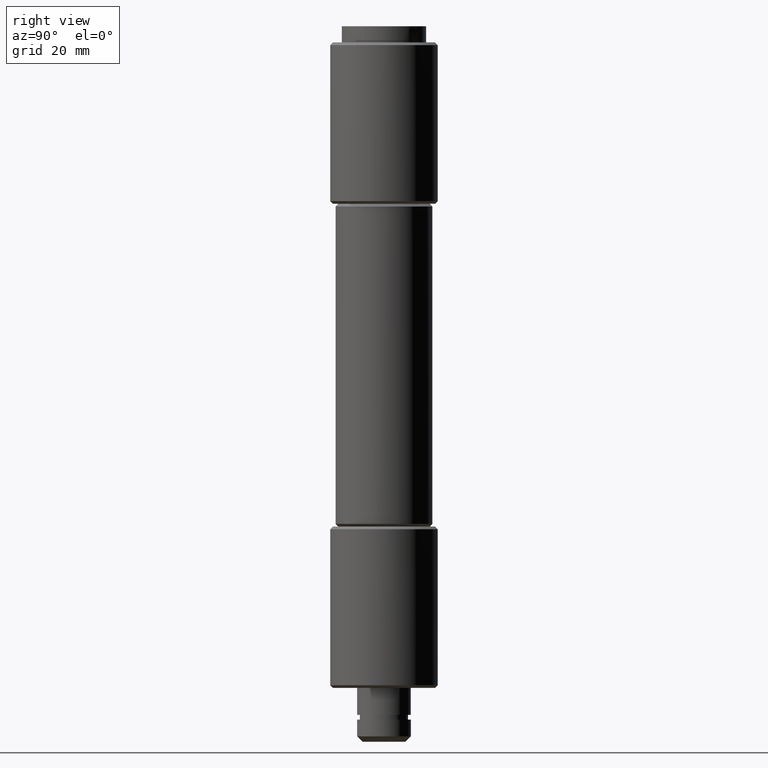
[diagram: clean part render]
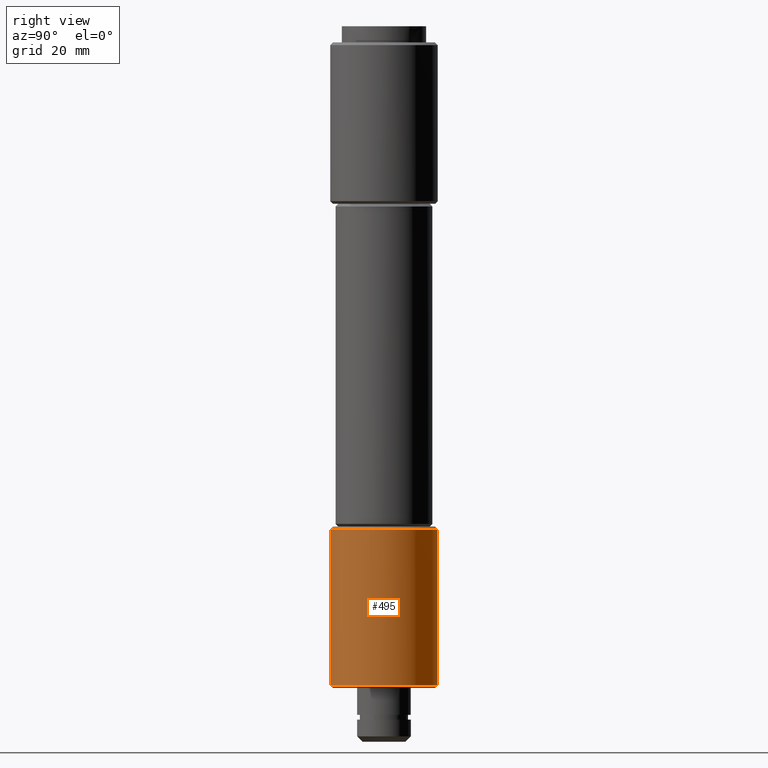
[diagram: same view with one face highlighted and labeled with its STEP entity id]
A machine part, right view. The second image highlights one B-rep face of the part: STEP entity #495.
In plain terms, the highlighted face is a freeform B-spline surface patch.
Its self-contained STEP definition (entity closure, byte-faithful):
#68=CARTESIAN_POINT('',(1.241280020905106,9.922662138242025,39.500000000000000));
#69=VERTEX_POINT('',#68);
#126=CARTESIAN_POINT('',(-0.087265355078694,-9.999619230640786,39.500000000000099));
#127=VERTEX_POINT('',#126);
#133=CARTESIAN_POINT('',(10.0,0.0,39.500000000000000));
#134=VERTEX_POINT('',#133);
#135=CARTESIAN_POINT('',(10.0,0.0,39.500000000000000));
#136=CARTESIAN_POINT('',(10.000000000000002,-10.000000000000002,39.500000000000000));
#137=CARTESIAN_POINT('',(0.0,-10.0,39.500000000000000));
#138=CARTESIAN_POINT('',(-0.043633508396916,-10.0,39.500000000000000));
#139=CARTESIAN_POINT('',(-0.087265355078694,-9.999619230640786,39.500000000000099));
#147=(BOUNDED_CURVE()B_SPLINE_CURVE(2,(#135,#136,#137,#138,#139),.UNSPECIFIED.,.F.,.U.)B_SPLINE_CURVE_WITH_KNOTS((3,2,3),(0.500000000000000,0.750000000000000,0.751539894341677),.UNSPECIFIED.)CURVE()GEOMETRIC_REPRESENTATION_ITEM()RATIONAL_B_SPLINE_CURVE((1.0,0.707106781186548,1.0,0.998195901558535,0.996414028084924))REPRESENTATION_ITEM(''));
#148=EDGE_CURVE('',#134,#127,#147,.T.);
#150=CARTESIAN_POINT('',(1.241280020905105,9.922662138242025,39.500000000000007));
#151=CARTESIAN_POINT('',(10.0,8.826986001310770,39.500000000000000));
#152=CARTESIAN_POINT('',(10.0,0.0,39.500000000000000));
#160=(BOUNDED_CURVE()B_SPLINE_CURVE(2,(#150,#151,#152),.UNSPECIFIED.,.F.,.U.)B_SPLINE_CURVE_WITH_KNOTS((3,3),(0.271473928974332,0.500000000000000),.UNSPECIFIED.)CURVE()GEOMETRIC_REPRESENTATION_ITEM()RATIONAL_B_SPLINE_CURVE((0.954005430267673,0.732265053898002,1.0))REPRESENTATION_ITEM(''));
#161=EDGE_CURVE('',#69,#134,#160,.T.);
#351=CARTESIAN_POINT('',(1.241280020950387,9.922662138236358,10.500000000000000));
#352=VERTEX_POINT('',#351);
#368=CARTESIAN_POINT('',(10.0,0.0,10.500000000000000));
#369=VERTEX_POINT('',#368);
#370=CARTESIAN_POINT('',(10.0,0.0,10.500000000000000));
#371=CARTESIAN_POINT('',(10.0,8.826986001229580,10.500000000000000));
#372=CARTESIAN_POINT('',(1.241280020950387,9.922662138236358,10.500000000000000));
#380=(BOUNDED_CURVE()B_SPLINE_CURVE(2,(#370,#371,#372),.UNSPECIFIED.,.F.,.U.)B_SPLINE_CURVE_WITH_KNOTS((3,3),(0.500000000000000,0.728526071024129),.UNSPECIFIED.)CURVE()GEOMETRIC_REPRESENTATION_ITEM()RATIONAL_B_SPLINE_CURVE((1.0,0.732265053899805,0.954005430264686))REPRESENTATION_ITEM(''));
#381=EDGE_CURVE('',#369,#352,#380,.T.);
#383=CARTESIAN_POINT('',(-0.087265355152411,-9.999619230640240,10.500000000000000));
#384=VERTEX_POINT('',#383);
#385=CARTESIAN_POINT('',(-0.087265355152411,-9.999619230640240,10.500000000000007));
#386=CARTESIAN_POINT('',(-0.043633508375697,-10.0,10.500000000000002));
#387=CARTESIAN_POINT('',(0.0,-10.0,10.500000000000000));
#388=CARTESIAN_POINT('',(10.000000000000002,-10.000000000000002,10.500000000000002));
#389=CARTESIAN_POINT('',(10.0,0.0,10.500000000000000));
#397=(BOUNDED_CURVE()B_SPLINE_CURVE(2,(#385,#386,#387,#388,#389),.UNSPECIFIED.,.F.,.U.)B_SPLINE_CURVE_WITH_KNOTS((3,2,3),(0.248460105659071,0.250000000000000,0.500000000000000),.UNSPECIFIED.)CURVE()GEOMETRIC_REPRESENTATION_ITEM()RATIONAL_B_SPLINE_CURVE((0.996414028086654,0.998195901559410,1.0,0.707106781186548,1.0))REPRESENTATION_ITEM(''));
#398=EDGE_CURVE('',#384,#369,#397,.T.);
#461=CARTESIAN_POINT('',(1.241280020798293,9.922662138255385,40.225000000000009));
#462=CARTESIAN_POINT('',(10.077328305024446,8.817312581332210,40.225000000000001));
#463=CARTESIAN_POINT('',(9.999619230641709,-0.087265354983739,40.225000000000009));
#464=CARTESIAN_POINT('',(9.912353875657971,-10.086884585625448,40.225000000000001));
#465=CARTESIAN_POINT('',(-0.087265354983739,-9.999619230641709,40.225000000000009));
#466=CARTESIAN_POINT('',(1.241280020798293,9.922662138255385,9.756874999999999));
#467=CARTESIAN_POINT('',(10.077328305024446,8.817312581332210,9.756874999999999));
#468=CARTESIAN_POINT('',(9.999619230641709,-0.087265354983739,9.756875000000001));
#469=CARTESIAN_POINT('',(9.912353875657971,-10.086884585625448,9.756875000000001));
#470=CARTESIAN_POINT('',(-0.087265354983739,-9.999619230641709,9.756875000000001));
#478=(BOUNDED_SURFACE()B_SPLINE_SURFACE(2,1,((#461,#466),(#462,#467),(#463,#468),(#464,#469),(#465,#470)),.UNSPECIFIED.,.F.,.F.,.U.)B_SPLINE_SURFACE_WITH_KNOTS((3,2,3),(2,2),(0.0,15.243059095329890,31.811601590253691),(0.0,30.468125000000011),.UNSPECIFIED.)GEOMETRIC_REPRESENTATION_ITEM()RATIONAL_B_SPLINE_SURFACE(((0.956886118190660,0.956886118190660),(0.730538238691624,0.730538238691624),(1.0,1.0),(0.707106781186548,0.707106781186548),(1.0,1.0)))REPRESENTATION_ITEM('')SURFACE());
#479=ORIENTED_EDGE('',*,*,#161,.T.);
#480=ORIENTED_EDGE('',*,*,#148,.T.);
#481=CARTESIAN_POINT('',(-0.087265355078694,-9.999619230640786,39.500000000000099));
#482=CARTESIAN_POINT('',(-0.087265355152411,-9.999619230640240,10.500000000000000));
#483=QUASI_UNIFORM_CURVE('',1,(#481,#482),.UNSPECIFIED.,.F.,.U.);
#484=EDGE_CURVE('',#127,#384,#483,.T.);
#485=ORIENTED_EDGE('',*,*,#484,.T.);
#486=ORIENTED_EDGE('',*,*,#398,.T.);
#487=ORIENTED_EDGE('',*,*,#381,.T.);
#488=CARTESIAN_POINT('',(1.241280020905106,9.922662138242025,39.500000000000000));
#489=CARTESIAN_POINT('',(1.241280020950387,9.922662138236358,10.500000000000000));
#490=QUASI_UNIFORM_CURVE('',1,(#488,#489),.UNSPECIFIED.,.F.,.U.);
#491=EDGE_CURVE('',#69,#352,#490,.T.);
#492=ORIENTED_EDGE('',*,*,#491,.F.);
#493=EDGE_LOOP('',(#479,#480,#485,#486,#487,#492));
#494=FACE_OUTER_BOUND('',#493,.T.);
#495=ADVANCED_FACE('',(#494),#478,.T.);